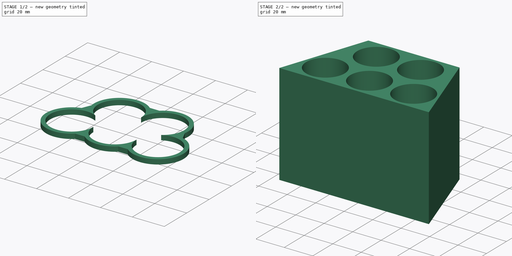
[diagram: build sequence overview — one tinted view per stage of 2, left to right]
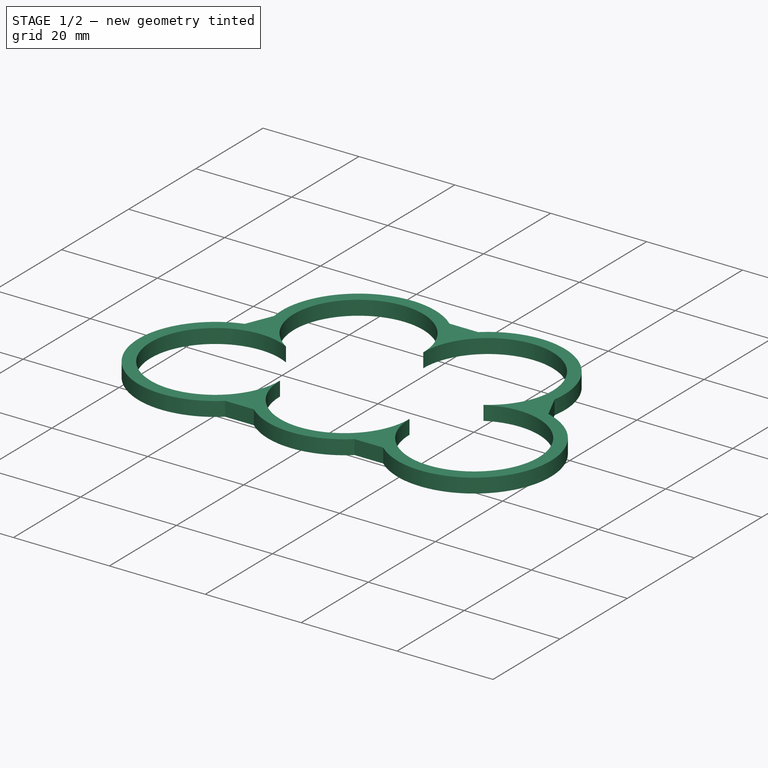
[diagram: stage 1 of 2 — iso view after this stage's code; geometry added in this stage tinted green]
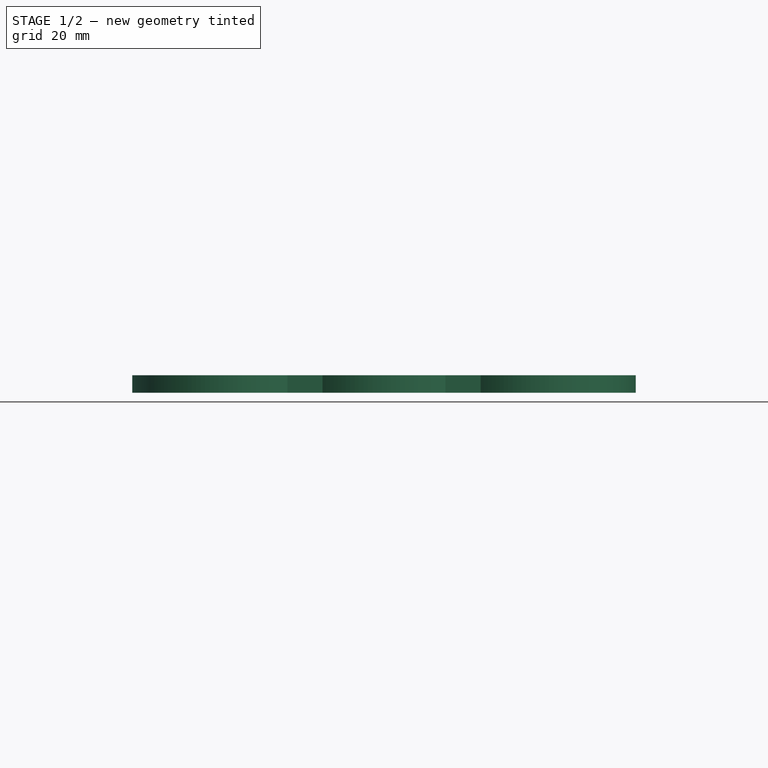
[diagram: stage 1 of 2 — front view after this stage's code; geometry added in this stage tinted green]
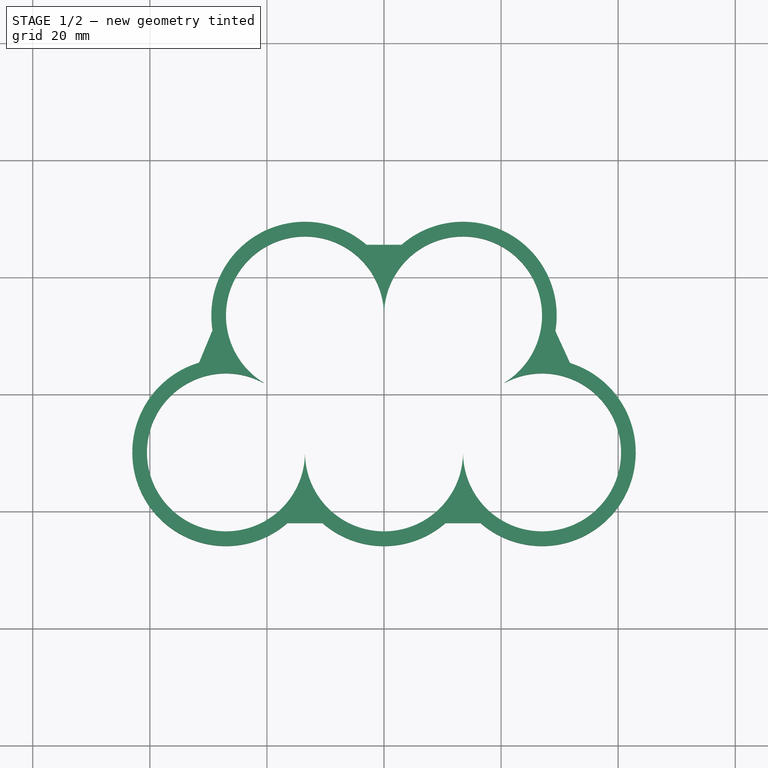
[diagram: stage 1 of 2 — top view after this stage's code; geometry added in this stage tinted green]
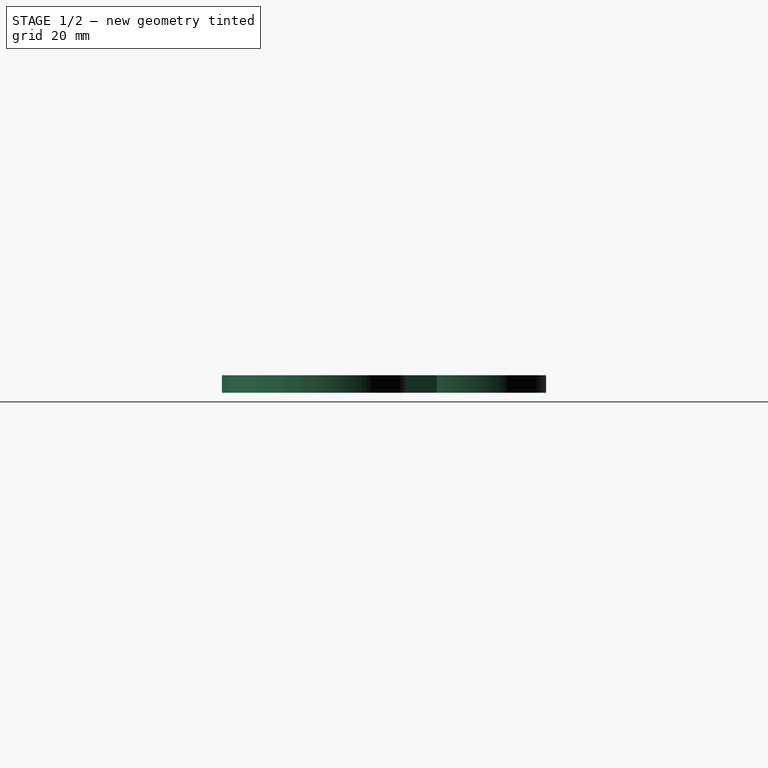
[diagram: stage 1 of 2 — right view after this stage's code; geometry added in this stage tinted green]
FCSTD DOCUMENT  (FreeCAD 0.17R13522 (Git))
Label: 2670-jwei-1.0
License: All rights reserved
LicenseURL: http://en.wikipedia.org/wiki/All_rights_reserved
objects: Sketcher::SketchObject×2, PartDesign::Pad×2, PartDesign::Body×2
note: 8 computed .brp shape members not serialized (recipe doc carries the construction recipe); baked Part::Feature solids carry a one-line shape summary decoded from their .brp

FEATURE [PartDesign::Body] Body
  Group = -> [Sketch,Pad]
  Origin = -> Origin
  Tip = -> Pad
FEATURE [Sketcher::SketchObject] Sketch001
  MapMode = 5
  Support = -> [XY_Plane001]
  sketch-geometry (17):
    g0: ArcOfCircle CenterX=-27 CenterY=-9.9 CenterZ=0 NormalX=0 NormalY=0 NormalZ=1 AngleXU=0 Radius=16 StartAngle=1.86199 EndAngle=5.42823
    g1: ArcOfCircle CenterX=0 CenterY=-9.90003 CenterZ=0 NormalX=0 NormalY=0 NormalZ=1 AngleXU=0 Radius=16 StartAngle=3.99655 EndAngle=5.42823
    g2: ArcOfCircle CenterX=27 CenterY=-9.9 CenterZ=0 NormalX=0 NormalY=0 NormalZ=1 AngleXU=0 Radius=16 StartAngle=3.99655 EndAngle=7.55068
    g3: ArcOfCircle CenterX=-13.5 CenterY=13.5 CenterZ=0 NormalX=0 NormalY=0 NormalZ=1 AngleXU=0 Radius=16 StartAngle=0.854958 EndAngle=3.30037
    g4: ArcOfCircle CenterX=13.5 CenterY=13.5 CenterZ=0 NormalX=0 NormalY=0 NormalZ=1 AngleXU=0 Radius=16 StartAngle=6.11502 EndAngle=8.56982
    g5: LineSegment StartX=-3 StartY=25.5727 StartZ=0 EndX=3 EndY=25.5727 EndZ=0
    g6: LineSegment StartX=16.5 StartY=-21.9727 StartZ=0 EndX=10.5 EndY=-21.9727 EndZ=0
    g7: LineSegment StartX=-10.5 StartY=-21.9727 StartZ=0 EndX=-16.5 EndY=-21.9727 EndZ=0
    g8: LineSegment StartX=-31.5936 StartY=5.42642 StartZ=0 EndX=-29.2987 EndY=10.9702 EndZ=0
    g9: LineSegment StartX=29.2743 StartY=10.822 StartZ=0 EndX=31.7787 EndY=5.3697 EndZ=0
    g10: ArcOfCircle CenterX=-27 CenterY=-9.9 CenterZ=0 NormalX=0 NormalY=0 NormalZ=1 AngleXU=0 Radius=13.5 StartAngle=1.07899 EndAngle=6.28319
    g11: ArcOfCircle CenterX=27 CenterY=-9.9 CenterZ=0 NormalX=0 NormalY=0 NormalZ=1 AngleXU=0 Radius=13.5 StartAngle=3.14159 EndAngle=8.34579
    g12: ArcOfCircle CenterX=-13.5 CenterY=13.5 CenterZ=0 NormalX=0 NormalY=0 NormalZ=1 AngleXU=0 Radius=13.5 StartAngle=1.578e-09 EndAngle=4.15828
    g13: ArcOfCircle CenterX=13.5 CenterY=13.5 CenterZ=0 NormalX=0 NormalY=0 NormalZ=1 AngleXU=0 Radius=13.5 StartAngle=5.2665 EndAngle=9.42478
    g14: ArcOfCircle CenterX=0 CenterY=-9.90003 CenterZ=0 NormalX=0 NormalY=0 NormalZ=1 AngleXU=0 Radius=13.5 StartAngle=3.14159 EndAngle=6.28319
    g15: LineSegment StartX=-20.625 StartY=2 StartZ=0 EndX=-20.6035 EndY=2.02 EndZ=0
    g16: LineSegment StartX=20.6035 StartY=2.02 StartZ=0 EndX=20.625 EndY=2 EndZ=0
  constraints (55):
    c: Radius(g0) = 16
    c: Radius(g1) = 16
    c: Radius(g2) = 16
    c: Radius(g3) = 16
    c: Radius(g4) = 16
    c: Coincident(g5,g3)
    c: Coincident(g5,g4)
    c: Coincident(g6,g2)
    c: Coincident(g6,g1)
    c: Coincident(g7,g1)
    c: Coincident(g7,g0)
    c: Coincident(g8,g0)
    c: Coincident(g9,g4)
    c: Coincident(g9,g2)
    c: Radius(g10) = 13.5
    c: Coincident(g0,g10)
    c: Distance(g8) = 6
    c: Distance(g7) = 6
    c: Coincident(g8,g3)
    c: DistanceX(g5,g5) = 6
    c: Distance(g9) = 6
    c: DistanceX(g6,g6) = 6
    c: Angle(g8,g0) = 2.0944
    c: Angle(g2,g9) = 2.0944
    c: Horizontal(g6)
    c: Horizontal(g7)
    c: Horizontal(g5)
    c: DistanceY(g-1,g0) = -9.9
    c: DistanceX(g-2,g0) = -27
    c: DistanceY(g-1,g2) = -9.9
    c: Coincident(g11,g2)
    c: Radius(g11) = 13.5
    c: DistanceX(g-2,g2) = 27
    c: DistanceX(g-2,g3) = -13.5
    c: DistanceY(g-1,g3) = 13.5
    c: Coincident(g12,g3)
    c: Radius(g12) = 13.5
    c: DistanceY(g-1,g4) = 13.5
    c: DistanceX(g-2,g4) = 13.5
    c: Coincident(g13,g4)
    c: Radius(g13) = 13.5
    c: Coincident(g13,g12)
    c: PointOnObject(g1,g-2)
    c: Coincident(g1,g14)
    c: Radius(g14) = 13.5
    c: Coincident(g11,g14)
    c: Coincident(g14,g10)
    c: Coincident(g15,g10)
    c: Coincident(g15,g12)
    c: DistanceY(g-1,g10) = 2
    c: DistanceY(g-1,g12) = 2.02
    c: DistanceY(g-1,g11) = 2
    c: DistanceY(g-1,g13) = 2.02
    c: Coincident(g16,g13)
    c: Coincident(g16,g11)
FEATURE [PartDesign::Pad] Pad001
  Length = 3
  Length2 = 100
  Profile = -> Sketch001
  Type = 0
FEATURE [PartDesign::Body] Body001
  Group = -> [Sketch001,Pad001]
  Origin = -> Origin001
  Tip = -> Pad001
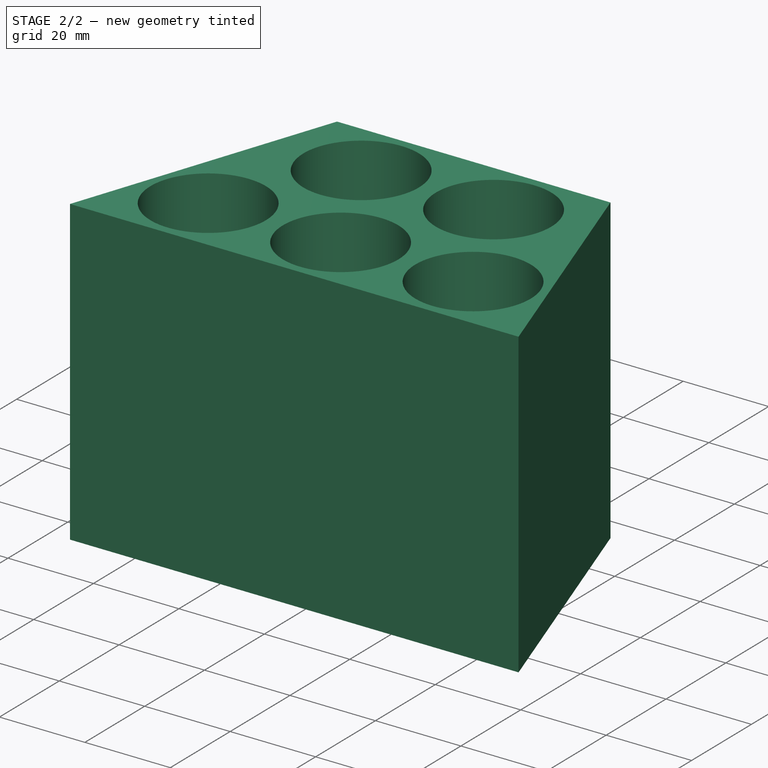
[diagram: stage 2 of 2 — iso view after this stage's code; geometry added in this stage tinted green]
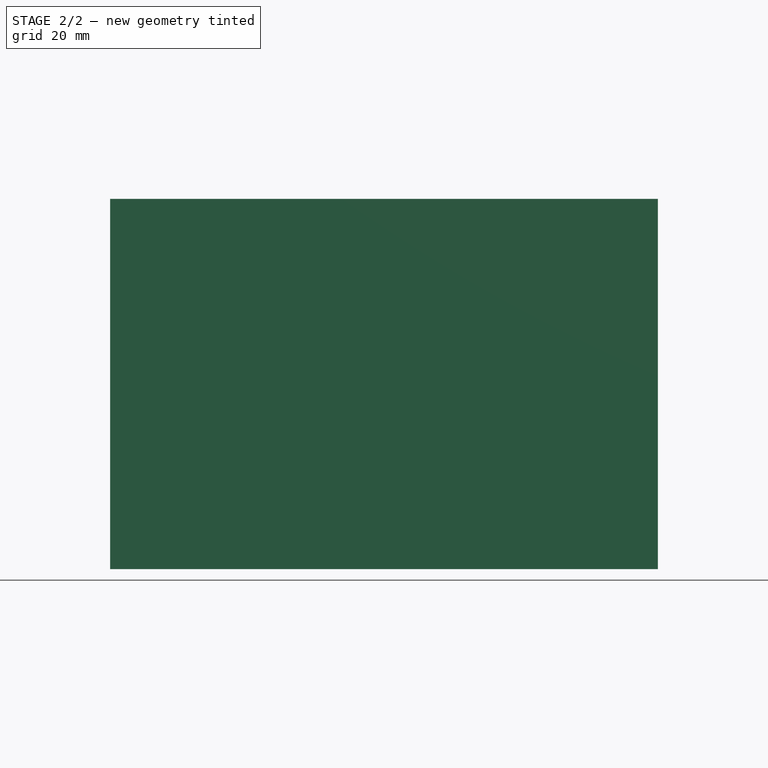
[diagram: stage 2 of 2 — front view after this stage's code; geometry added in this stage tinted green]
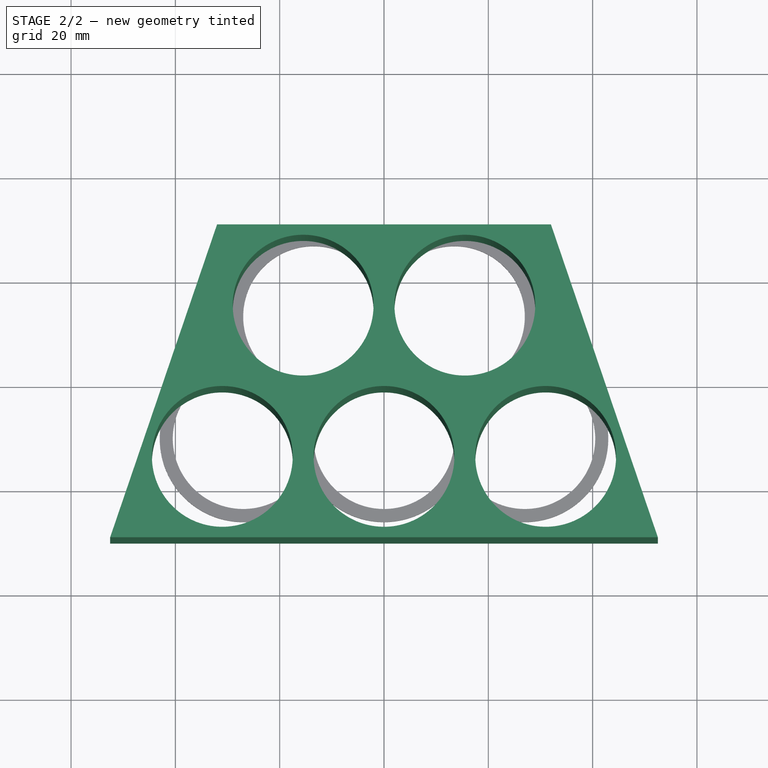
[diagram: stage 2 of 2 — top view after this stage's code; geometry added in this stage tinted green]
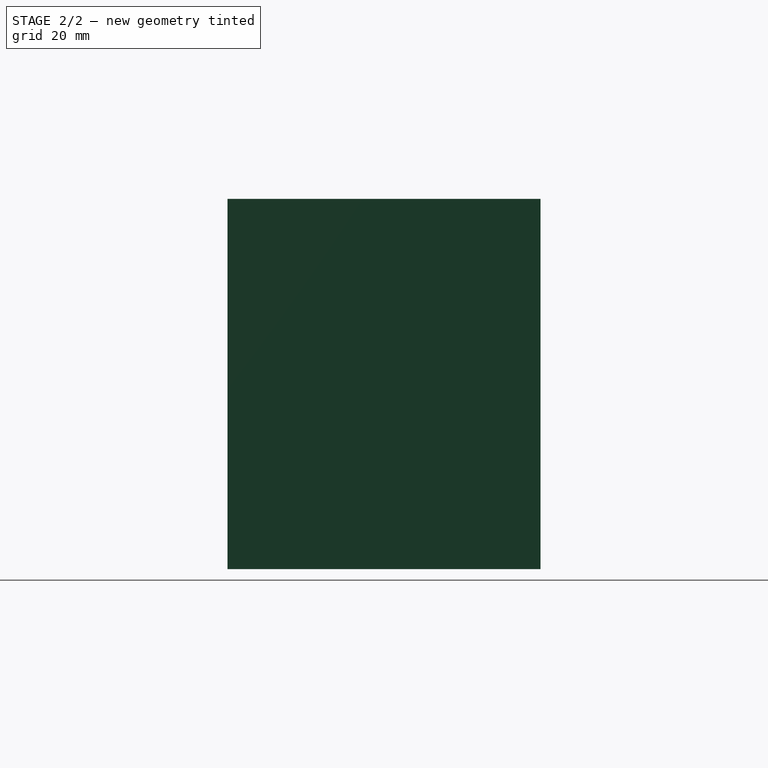
[diagram: stage 2 of 2 — right view after this stage's code; geometry added in this stage tinted green]
FEATURE [Sketcher::SketchObject] Sketch
  MapMode = 5
  Support = -> [XY_Plane]
  sketch-geometry (9):
    g0: LineSegment StartX=-52.5 StartY=-30 StartZ=0 EndX=52.5 EndY=-30 EndZ=0
    g1: LineSegment StartX=52.5 StartY=-30 StartZ=0 EndX=32 EndY=30 EndZ=0
    g2: LineSegment StartX=32 StartY=30 StartZ=0 EndX=-32 EndY=30 EndZ=0
    g3: LineSegment StartX=-32 StartY=30 StartZ=0 EndX=-52.5 EndY=-30 EndZ=0
    g4: Circle CenterX=-15.5 CenterY=14.5 CenterZ=0 NormalX=0 NormalY=0 NormalZ=1 AngleXU=0 Radius=13.5
    g5: Circle CenterX=15.5 CenterY=14.5 CenterZ=0 NormalX=0 NormalY=0 NormalZ=1 AngleXU=0 Radius=13.5
    g6: Circle CenterX=31 CenterY=-14.5 CenterZ=0 NormalX=0 NormalY=0 NormalZ=1 AngleXU=0 Radius=13.5
    g7: Circle CenterX=0 CenterY=-14.5 CenterZ=0 NormalX=0 NormalY=0 NormalZ=1 AngleXU=0 Radius=13.5
    g8: Circle CenterX=-31 CenterY=-14.5 CenterZ=0 NormalX=0 NormalY=0 NormalZ=1 AngleXU=0 Radius=13.5
  constraints (27):
    c: Horizontal(g0)
    c: Coincident(g0,g1)
    c: Coincident(g1,g2)
    c: Horizontal(g2)
    c: Coincident(g2,g3)
    c: Coincident(g3,g0)
    c: DistanceX(g2,g2) = 64
    c: DistanceX(g-2,g1) = 32
    c: DistanceY(g-1,g2) = 30
    c: DistanceY(g-1,g0) = -30
    c: Radius(g4) = 13.5
    c: Radius(g5) = 13.5
    c: Distance(g4,g2) = 15.5
    c: Horizontal(g5,g4)
    c: Horizontal(g6,g7)
    c: Horizontal(g7,g8)
    c: Radius(g8) = 13.5
    c: Equal(g8,g7)
    c: Equal(g8,g6)
    c: Distance(g5,g4) = 31
    c: DistanceX(g-2,g4) = -15.5
    c: PointOnObject(g7,g-2)
    c: Distance(g7,g0) = 15.5
    c: Distance(g6,g7) = 31
    c: Distance(g8,g7) = 31
    c: DistanceX(g0,g0) = 105
    c: DistanceX(g-2,g0) = 52.5
FEATURE [PartDesign::Pad] Pad
  Length = 71
  Length2 = 100
  Profile = -> Sketch
  Type = 0
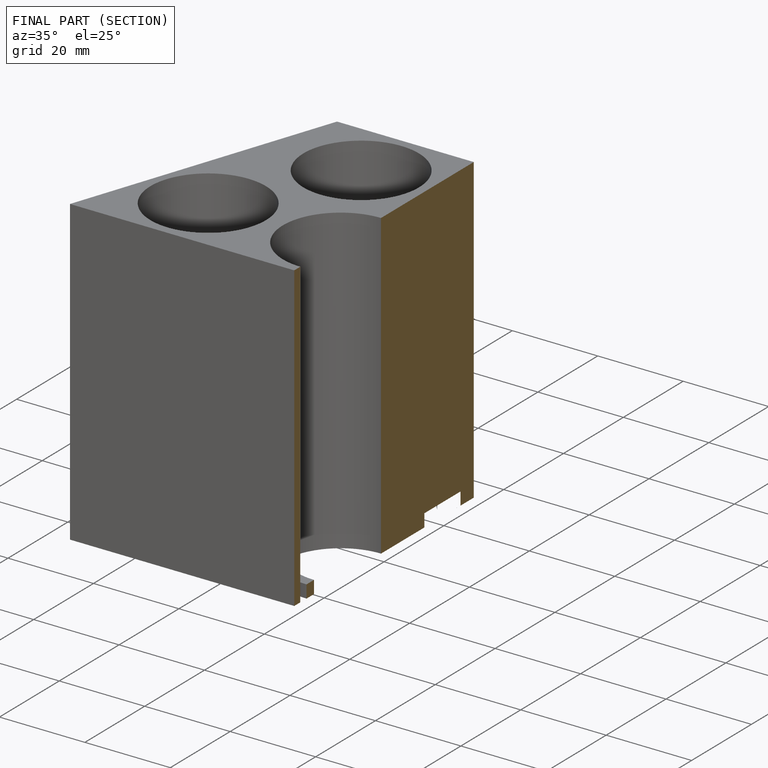
[diagram: finished part — half-section view (interior)]
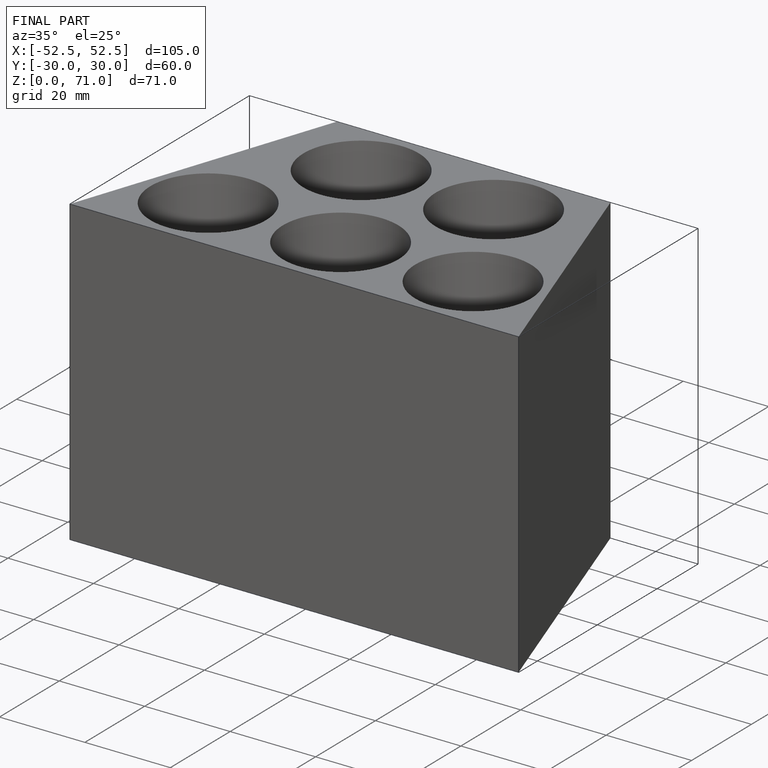
[diagram: finished part — iso view with bounding-box wireframe]
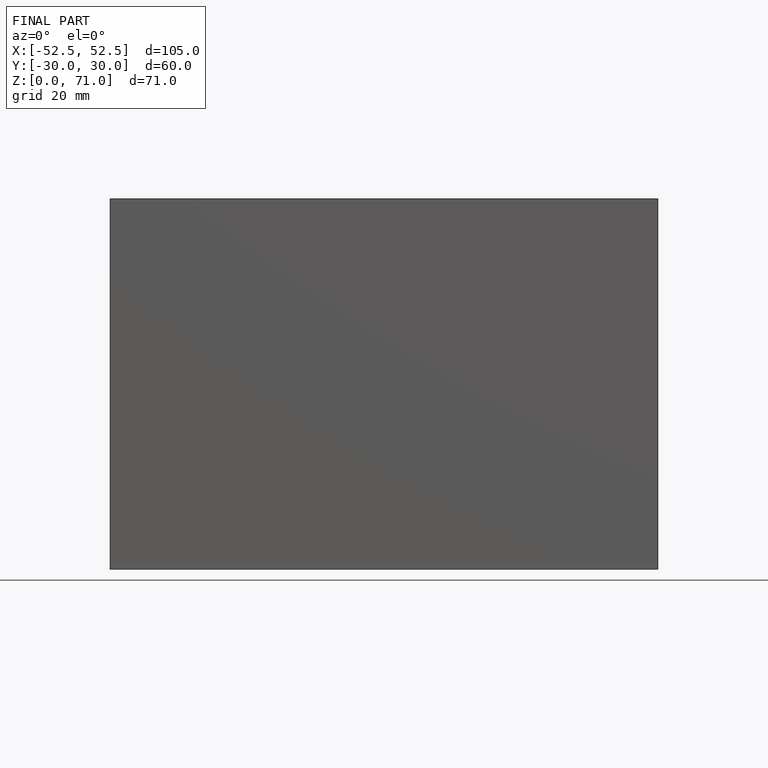
[diagram: finished part — front view with bounding-box wireframe]
